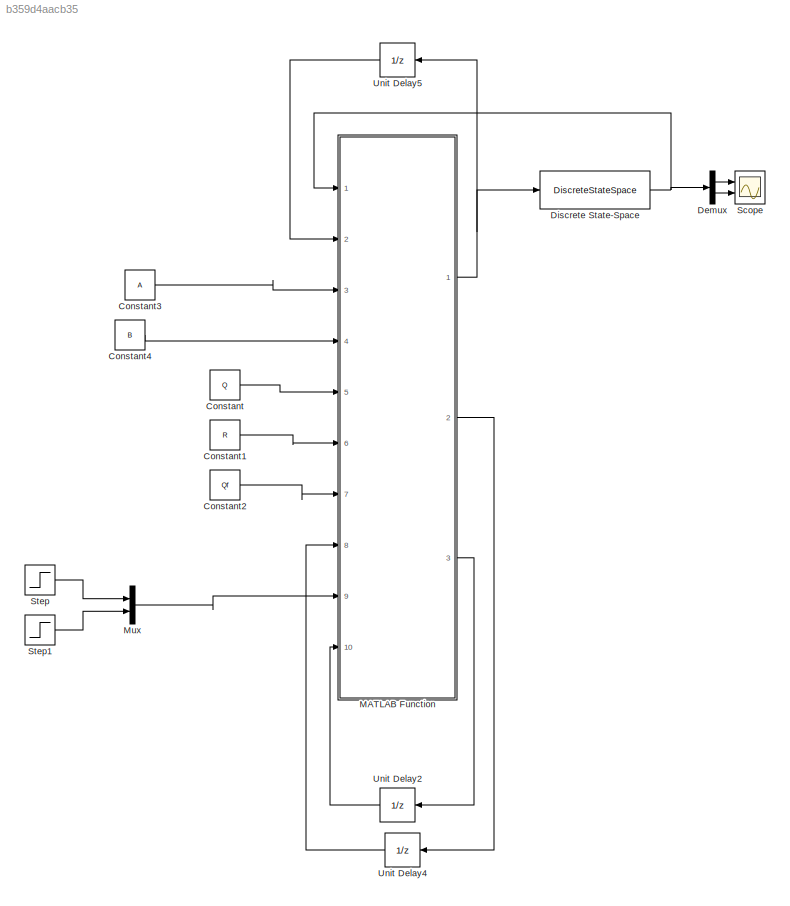
MODEL slx_b359d4aacb35
KIND model
CONFIG AbsTol = auto
CONFIG EnableMultiTasking = off
CONFIG FixedStep = 0.001
CONFIG MaxStep = 0.001
CONFIG MinStep = auto
CONFIG RelTol = 1e-3
CONFIG SampleTimeConstraint = Unconstrained
CONFIG SolverName = FixedStepDiscrete
CONFIG StartTime = 0.0
CONFIG StopTime = 10.0
BLOCK [Constant] Constant
  Value = Q
BLOCK [Constant] Constant1
  Value = R
BLOCK [Constant] Constant2
  Value = Qf
BLOCK [Constant] Constant3
  Value = A
BLOCK [Constant] Constant4
  Value = B
BLOCK [Demux] Demux
  Outputs = 2
  Ports = [1, 2]
BLOCK [DiscreteStateSpace] Discrete State-Space
  A = A
  B = B
  C = eye(2)
  D = zeros(2)
  SampleTime = -1
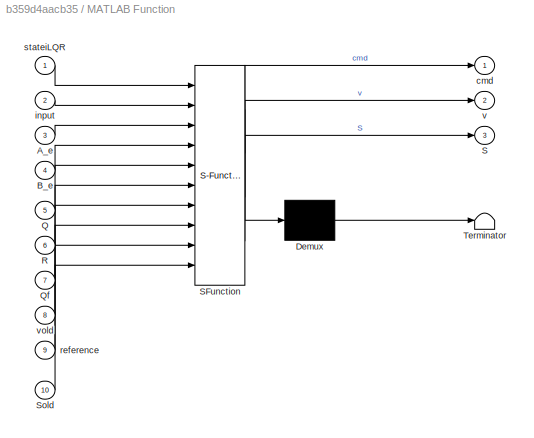
BLOCK [SubSystem] MATLAB Function
  ErrorFcn = Stateflow.Translate.translate
  PermitHierarchicalResolution = ExplicitOnly
  Ports = [10, 3]
  RequestExecContextInheritance = off
  SFBlockType = MATLAB Function
  TreatAsAtomicUnit = on
BLOCK [Demux] MATLAB Function/ Demux 
  Outputs = 1
  Ports = [1, 1]
BLOCK [S-Function] MATLAB Function/ SFunction 
  EnableBusSupport = on
  FunctionName = sf_sfun
  PortCounts = [10 4]
  Ports = [10, 4]
  SFcnIsStateOwnerBlock = off
  SFunctionDeploymentMode = off
  Tag = Stateflow S-Function 2
BLOCK [Terminator] MATLAB Function/ Terminator 
BLOCK [Inport] MATLAB Function/A_e
  Port = 3
BLOCK [Inport] MATLAB Function/B_e
  Port = 4
BLOCK [Inport] MATLAB Function/Q
  Port = 5
BLOCK [Inport] MATLAB Function/Qf
  Port = 7
BLOCK [Inport] MATLAB Function/R
  Port = 6
BLOCK [Outport] MATLAB Function/S
  Port = 3
BLOCK [Inport] MATLAB Function/Sold
  Port = 10
BLOCK [Outport] MATLAB Function/cmd
BLOCK [Inport] MATLAB Function/input
  Port = 2
BLOCK [Inport] MATLAB Function/reference
  Port = 9
BLOCK [Inport] MATLAB Function/stateiLQR
BLOCK [Outport] MATLAB Function/v
  Port = 2
BLOCK [Inport] MATLAB Function/vold
  Port = 8
BLOCK [Mux] Mux
  DisplayOption = bar
  Inputs = 2
  Ports = [2, 1]
BLOCK [Scope] Scope
  Floating = off
  NumInputPorts = 2
  Ports = [2]
  ScopeSpecificationString = Simulink.scopes.TimeScopeBlockCfg('CurrentConfiguration', extmgr.ConfigurationSet(extmgr.Configuration('Core','General UI',true),extmgr.Configuration('Core','Source UI',true),extmgr.Configuration('Sources','WiredSimulink',true),extmgr.Configuration('Visuals','Time Domain',true,'SerializedDisplays',{struct('MinYLimReal','-1.92173','MaxYLimReal','0.21353','YLabelReal','','MinYLimMag','0.00000','MaxY...<+1454ch>
BLOCK [Step] Step
  SampleTime = 0
BLOCK [Step] Step1
  SampleTime = 0
BLOCK [UnitDelay] Unit Delay2
  HasFrameUpgradeWarning = on
  InitialCondition = Qf
  SampleTime = -1
BLOCK [UnitDelay] Unit Delay4
  HasFrameUpgradeWarning = on
  InitialCondition = zeros(2,1)
  SampleTime = -1
BLOCK [UnitDelay] Unit Delay5
  HasFrameUpgradeWarning = on
  InitialCondition = zeros(2,1)
  SampleTime = -1
LINE Constant1:1 -> MATLAB Function:6
LINE Constant2:1 -> MATLAB Function:7
LINE Constant3:1 -> MATLAB Function:3
LINE Constant4:1 -> MATLAB Function:4
LINE Constant:1 -> MATLAB Function:5
LINE Demux:1 -> Scope:1
LINE Demux:2 -> Scope:2
NET Discrete State-Space:1 -> Demux:1, MATLAB Function:1
NET MATLAB Function:1 -> Discrete State-Space:1, Unit Delay5:1
LINE MATLAB Function:2 -> Unit Delay4:1
LINE MATLAB Function:3 -> Unit Delay2:1
LINE Mux:1 -> MATLAB Function:9
LINE Step1:1 -> Mux:2
LINE Step:1 -> Mux:1
LINE Unit Delay2:1 -> MATLAB Function:10
LINE Unit Delay4:1 -> MATLAB Function:8
LINE Unit Delay5:1 -> MATLAB Function:2
note: NET lines group one-source signal fan-out (src -> all destinations, sorted); 1:1 wires keep LINE
CHART MATLAB Function states=1 transitions=1
  STATE_LABEL 'eML_blk_kernel()'
  STATE_LABEL "SCRIPT:\nfunction [cmd, v, S] = iLQRmimo(stateiLQR,input,A_e,B_e, Q, R, Qf, vold, reference, Sold)\n% toll = 3*10^-5;\n\nA = A_e;\nB = B_e;\nstate = stateiLQR';\nJ = state*Qf*state'+state*Q*state'+input'*R*input;\n\n\n% if abs(Jold-J)/Jold > toll\nK  = (B'*Sold*B+R)\\B'*Sold*A;\nKv = (B'*Sold*B+R)\\B';\nKu = (B'*Sold*B+R)\\R;\nS  = A'*Sold*(A-B*K)+Q;\ndeltax = -reference; % Changed the sign on this one because\n% ot...<+148ch>"
CHART  states=0 transitions=0
